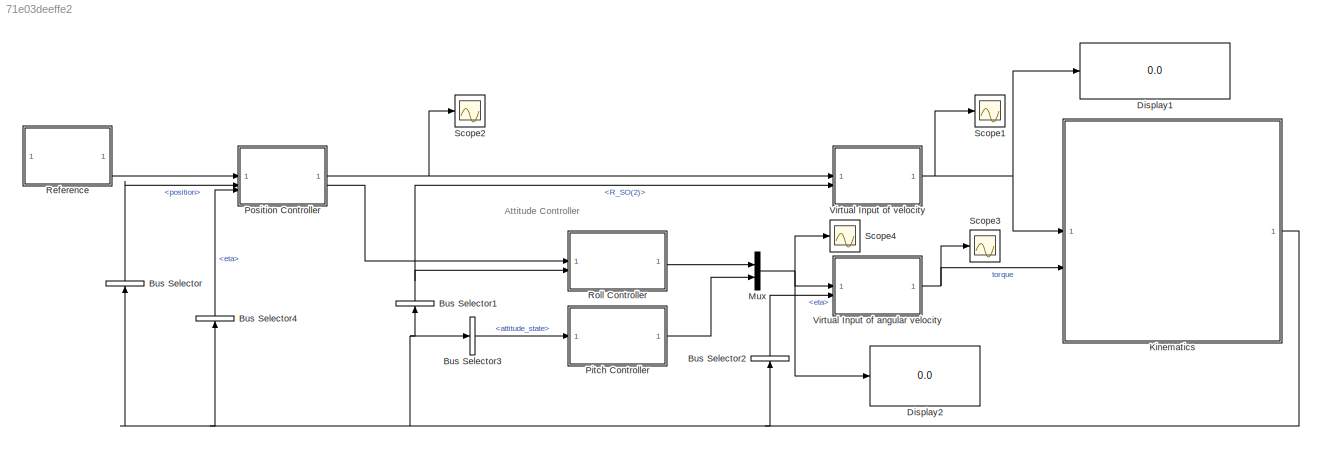
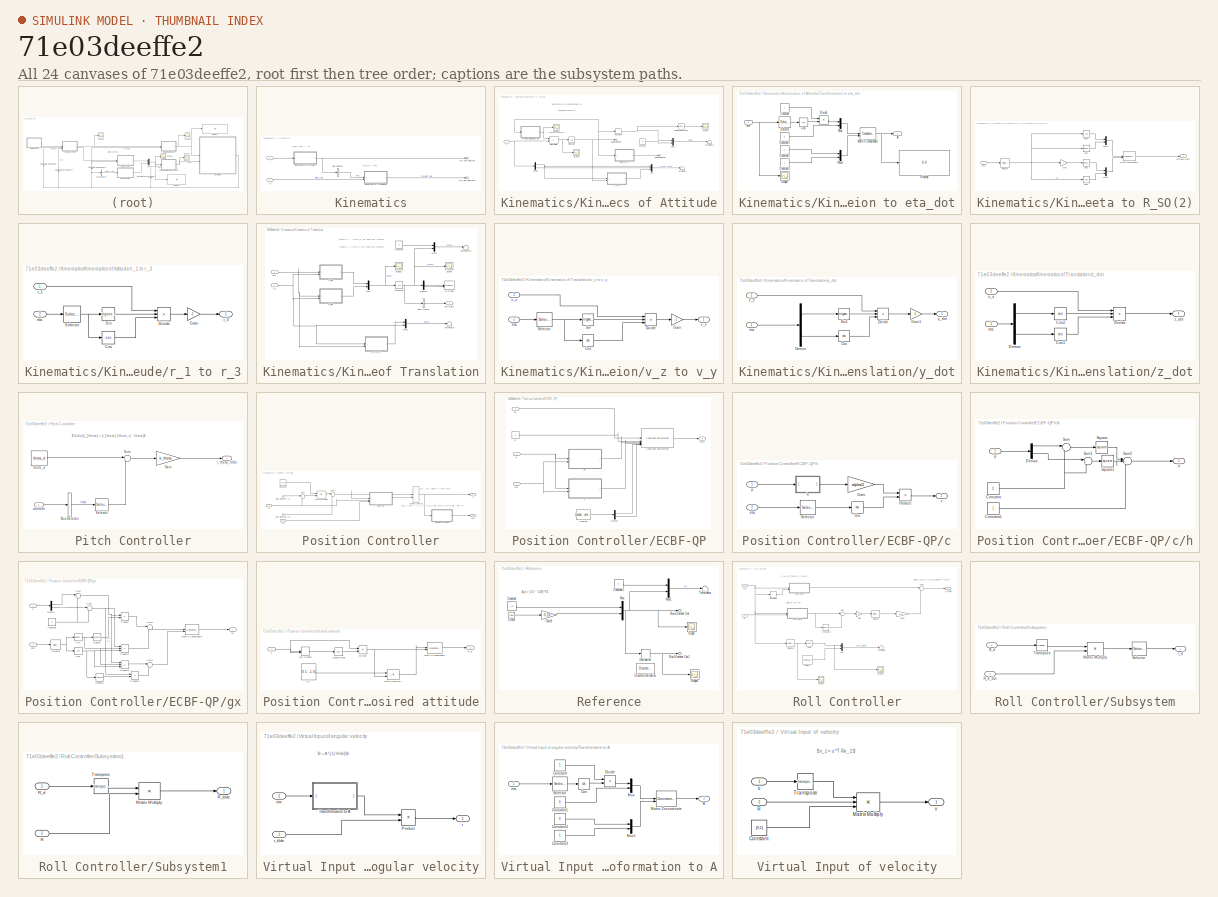
[diagram: thumbnail index - all 24 canvases of the model, root first then tree order]
MODEL slx_71e03deeffe2
KIND model
CONFIG AbsTol = auto
CONFIG EnableMultiTasking = off
CONFIG FixedStep = ts
CONFIG MaxStep = auto
CONFIG MinStep = auto
CONFIG RelTol = 1e-3
CONFIG SampleTimeConstraint = Unconstrained
CONFIG SolverName = FixedStepAuto
CONFIG StartTime = 0.0
CONFIG StopTime = fs
BLOCK [BusSelector] Bus Selector
  NameLocation = right
  OutputSignals = translation_state.position
BLOCK [BusSelector] Bus Selector1
  NameLocation = right
  OutputSignals = attitude_state.R_SO(2)
BLOCK [BusSelector] Bus Selector2
  NameLocation = right
  OutputSignals = attitude_state.eta
BLOCK [BusSelector] Bus Selector3
  OutputSignals = attitude_state
BLOCK [BusSelector] Bus Selector4
  NameLocation = right
  OutputSignals = attitude_state.eta
BLOCK [Display] Display1
  Decimation = 1
BLOCK [Display] Display2
  Decimation = 1
BLOCK [SubSystem] Kinematics
BLOCK [BusSelector] Kinematics/Bus Selector
  OutputSignals = eta
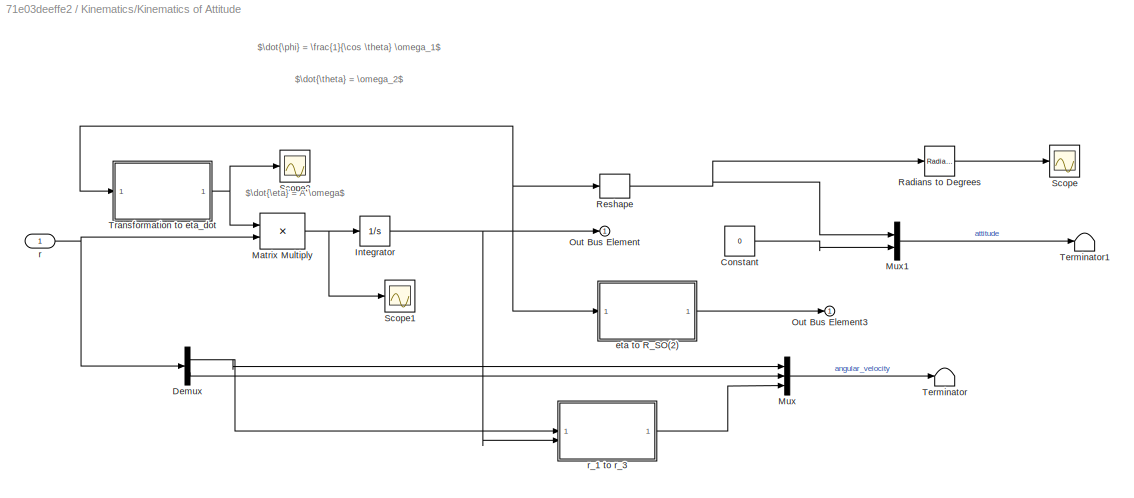
BLOCK [SubSystem] Kinematics/Kinematics of Attitude
BLOCK [Constant] Kinematics/Kinematics of Attitude/Constant
  Value = 0
BLOCK [Demux] Kinematics/Kinematics of Attitude/Demux
  Outputs = 2
BLOCK [Integrator] Kinematics/Kinematics of Attitude/Integrator
  InitialCondition = eta_0
BLOCK [Product] Kinematics/Kinematics of Attitude/Matrix Multiply
  Multiplication = Matrix(*)
BLOCK [Mux] Kinematics/Kinematics of Attitude/Mux
  DisplayOption = bar
  Inputs = 3
BLOCK [Mux] Kinematics/Kinematics of Attitude/Mux1
  DisplayOption = bar
  Inputs = 2
BLOCK [Outport] Kinematics/Kinematics of Attitude/Out Bus Element
BLOCK [Outport] Kinematics/Kinematics of Attitude/Out Bus Element3
BLOCK [Reference] Kinematics/Kinematics of Attitude/Radians to Degrees  REF=simulink_extras/Transformations/Radians
to Degrees
  SourceBlock = simulink_extras/Transformations/Radians\nto Degrees
  SourceType = RadiansToDegrees
BLOCK [Reshape] Kinematics/Kinematics of Attitude/Reshape
BLOCK [Scope] Kinematics/Kinematics of Attitude/Scope
  Floating = off
  NumInputPorts = 1
  ScopeSpecificationString = Simulink.scopes.TimeScopeBlockCfg('CurrentConfiguration', extmgr.ConfigurationSet(extmgr.Configuration('Core','General UI',true),extmgr.Configuration('Core','Source UI',true),extmgr.Configuration('Sources','WiredSimulink',true),extmgr.Configuration('Visuals','Time Domain',true,'SerializedDisplays',{struct('MinYLimReal','-107.94177','MaxYLimReal','53.43878','YLabelReal','','MinYLimMag',' 0.00000','...<+1461ch>
BLOCK [Scope] Kinematics/Kinematics of Attitude/Scope1
  Floating = off
  NumInputPorts = 1
  ScopeSpecificationString = Simulink.scopes.TimeScopeBlockCfg('CurrentConfiguration', extmgr.ConfigurationSet(extmgr.Configuration('Core','General UI',true),extmgr.Configuration('Core','Source UI',true),extmgr.Configuration('Sources','WiredSimulink',true,'DataLoggingVariableName','ScopeData6'),extmgr.Configuration('Visuals','Time Domain',true,'SerializedDisplays',{struct('MinYLimReal','-6.04523','MaxYLimReal','4.90959','YLab...<+1481ch>
BLOCK [Scope] Kinematics/Kinematics of Attitude/Scope2
  Floating = off
  NumInputPorts = 1
  ScopeSpecificationString = Simulink.scopes.TimeScopeBlockCfg('CurrentConfiguration', extmgr.ConfigurationSet(extmgr.Configuration('Core','General UI',true),extmgr.Configuration('Core','Source UI',true),extmgr.Configuration('Sources','WiredSimulink',true,'DataLoggingVariableName','ScopeData2'),extmgr.Configuration('Visuals','Time Domain',true,'SerializedDisplays',{struct('MinYLimReal','-0.12693','MaxYLimReal','1.14235','YLab...<+1539ch>
BLOCK [Terminator] Kinematics/Kinematics of Attitude/Terminator
BLOCK [Terminator] Kinematics/Kinematics of Attitude/Terminator1
BLOCK [SubSystem] Kinematics/Kinematics of Attitude/Transformation to eta_dot
BLOCK [Outport] Kinematics/Kinematics of Attitude/Transformation to eta_dot/A
BLOCK [Constant] Kinematics/Kinematics of Attitude/Transformation to eta_dot/Constant
BLOCK [Constant] Kinematics/Kinematics of Attitude/Transformation to eta_dot/Constant1
  Value = 0
BLOCK [Constant] Kinematics/Kinematics of Attitude/Transformation to eta_dot/Constant2
  Value = 0
BLOCK [Constant] Kinematics/Kinematics of Attitude/Transformation to eta_dot/Constant3
BLOCK [Trigonometry] Kinematics/Kinematics of Attitude/Transformation to eta_dot/Cos
  Operator = cos
BLOCK [Display] Kinematics/Kinematics of Attitude/Transformation to eta_dot/Display
  Decimation = 1
BLOCK [Product] Kinematics/Kinematics of Attitude/Transformation to eta_dot/Divide
  Inputs = */
BLOCK [Concatenate] Kinematics/Kinematics of Attitude/Transformation to eta_dot/Matrix Concatenate
  ConcatenateDimension = 2
  Mode = Multidimensional array
BLOCK [Mux] Kinematics/Kinematics of Attitude/Transformation to eta_dot/Mux
  DisplayOption = bar
  Inputs = 2
BLOCK [Mux] Kinematics/Kinematics of Attitude/Transformation to eta_dot/Mux1
  DisplayOption = bar
  Inputs = 2
BLOCK [Scope] Kinematics/Kinematics of Attitude/Transformation to eta_dot/Scope
  Floating = off
  NumInputPorts = 1
  ScopeSpecificationString = Simulink.scopes.TimeScopeBlockCfg('CurrentConfiguration', extmgr.ConfigurationSet(extmgr.Configuration('Core','General UI',true),extmgr.Configuration('Core','Source UI',true),extmgr.Configuration('Sources','WiredSimulink',true,'DataLoggingVariableName','ScopeData1'),extmgr.Configuration('Visuals','Time Domain',true,'SerializedDisplays',{struct('MinYLimReal','-1.74589','MaxYLimReal','0.38791','YLab...<+1414ch>
BLOCK [Selector] Kinematics/Kinematics of Attitude/Transformation to eta_dot/Selector
  IndexOptions = Index vector (dialog)
  Indices = [2]
  InputPortWidth = 2
  OutputSizes = 1
BLOCK [Inport] Kinematics/Kinematics of Attitude/Transformation to eta_dot/eta
BLOCK [SubSystem] Kinematics/Kinematics of Attitude/eta to R_SO(2)
BLOCK [Trigonometry] Kinematics/Kinematics of Attitude/eta to R_SO(2)/Cos1
  Operator = cos
BLOCK [Trigonometry] Kinematics/Kinematics of Attitude/eta to R_SO(2)/Cos2
  Operator = cos
BLOCK [Gain] Kinematics/Kinematics of Attitude/eta to R_SO(2)/Gain
  Gain = -1
BLOCK [Concatenate] Kinematics/Kinematics of Attitude/eta to R_SO(2)/Matrix Concatenate
  ConcatenateDimension = 2
  Mode = Multidimensional array
BLOCK [Mux] Kinematics/Kinematics of Attitude/eta to R_SO(2)/Mux1
  DisplayOption = bar
  Inputs = 2
BLOCK [Mux] Kinematics/Kinematics of Attitude/eta to R_SO(2)/Mux2
  DisplayOption = bar
  Inputs = 2
BLOCK [Selector] Kinematics/Kinematics of Attitude/eta to R_SO(2)/Selector
  IndexOptions = Index vector (dialog)
  Indices = [1]
  InputPortWidth = 2
  OutputSizes = 1
BLOCK [Trigonometry] Kinematics/Kinematics of Attitude/eta to R_SO(2)/Sin1
BLOCK [Trigonometry] Kinematics/Kinematics of Attitude/eta to R_SO(2)/Sin2
BLOCK [Outport] Kinematics/Kinematics of Attitude/eta to R_SO(2)/attitude_state
BLOCK [Inport] Kinematics/Kinematics of Attitude/eta to R_SO(2)/eta
BLOCK [Inport] Kinematics/Kinematics of Attitude/r
BLOCK [SubSystem] Kinematics/Kinematics of Attitude/r_1 to r_3
BLOCK [Trigonometry] Kinematics/Kinematics of Attitude/r_1 to r_3/Cos
  Operator = cos
BLOCK [Product] Kinematics/Kinematics of Attitude/r_1 to r_3/Divide
  Inputs = **/
BLOCK [Gain] Kinematics/Kinematics of Attitude/r_1 to r_3/Gain
  Gain = -1
BLOCK [Selector] Kinematics/Kinematics of Attitude/r_1 to r_3/Selector
  IndexOptions = Index vector (dialog)
  Indices = [2]
  InputPortWidth = 2
  OutputSizes = 1
BLOCK [Trigonometry] Kinematics/Kinematics of Attitude/r_1 to r_3/Sin
BLOCK [Inport] Kinematics/Kinematics of Attitude/r_1 to r_3/eta
  Port = 2
BLOCK [Inport] Kinematics/Kinematics of Attitude/r_1 to r_3/r_1
BLOCK [Outport] Kinematics/Kinematics of Attitude/r_1 to r_3/r_3
BLOCK [SubSystem] Kinematics/Kinematics of Translation
BLOCK [BusCreator] Kinematics/Kinematics of Translation/Bus Creator
  DisplayOption = bar
  InheritFromInputs = on
  Inputs = 1
BLOCK [Constant] Kinematics/Kinematics of Translation/Constant
  Value = 0
BLOCK [Demux] Kinematics/Kinematics of Translation/Demux
  Outputs = 2
BLOCK [Integrator] Kinematics/Kinematics of Translation/Integrator
  InitialCondition = p_0
BLOCK [Mux] Kinematics/Kinematics of Translation/Mux
  DisplayOption = bar
  Inputs = 2
BLOCK [Mux] Kinematics/Kinematics of Translation/Mux1
  DisplayOption = bar
  Inputs = 2
BLOCK [Mux] Kinematics/Kinematics of Translation/Mux2
  DisplayOption = bar
  Inputs = 2
BLOCK [Scope] Kinematics/Kinematics of Translation/Scope
  Floating = off
  NumInputPorts = 1
  ScopeSpecificationString = Simulink.scopes.TimeScopeBlockCfg('CurrentConfiguration', extmgr.ConfigurationSet(extmgr.Configuration('Core','General UI',true),extmgr.Configuration('Core','Source UI',true),extmgr.Configuration('Sources','WiredSimulink',true),extmgr.Configuration('Visuals','Time Domain',true,'SerializedDisplays',{struct('MinYLimReal','-0.75019','MaxYLimReal','6.75171','YLabelReal','','MinYLimMag','0.00000','MaxY...<+1395ch>
BLOCK [Scope] Kinematics/Kinematics of Translation/Scope1
  Floating = off
  NumInputPorts = 1
  ScopeSpecificationString = Simulink.scopes.TimeScopeBlockCfg('CurrentConfiguration', extmgr.ConfigurationSet(extmgr.Configuration('Core','General UI',true),extmgr.Configuration('Core','Source UI',true),extmgr.Configuration('Sources','WiredSimulink',true,'DataLoggingVariableName','ScopeData4'),extmgr.Configuration('Visuals','Time Domain',true,'SerializedDisplays',{struct('MinYLimReal','-0.17023','MaxYLimReal','1.53203','YLab...<+1434ch>
BLOCK [Terminator] Kinematics/Kinematics of Translation/Terminator
BLOCK [Terminator] Kinematics/Kinematics of Translation/Terminator1
BLOCK [Record] Kinematics/Kinematics of Translation/XY Graph
  CompatibilityTag = XY
  FileSettingsInternal = {"entries":[{"content":{"excelSettings":{"content":{},"type":"Streamout.ExcelSettings"}},"type":"Streamout.FileSettingStorage","uuid":""}],"packageUris":["http:\/\/schema.mathworks.com\/mf0\/streamout_blocks\/R2020a"],"version":"1.0"}
  Layout = [1 1]
  SignalsInternal = {"entries":[{"content":{"signals":[{"content":{"blockPath":[],"dimensions":[1],"domain":"","lineColor":"#a2142f","plots":[1],"port":1,"sid":[""],"signalID":39,"signalName":"Demux:1"},"type":"RecordBlkView.Signal","uuid":""},{"content":{"blockPath":[],"dimensions":[1],"domain":"","lineColor":"#139fff","plots":[1],"port":2,"sid":[""],"signalID":43,"signalName":"Demux:2"},"type":"RecordBlkView.Signal...<+158ch>
  VisualizationBindings = {"xyplotplugin":{"info":[{"series":[{"bindingParametersList":[{"parameter":"X-Axis","signalID":39,"signalName":"Demux:1"},{"parameter":"Y-Axis","signalID":43,"signalName":"Demux:2"}],"seriesID":24023}],"subplotID":1}]}}
BLOCK [Inport] Kinematics/Kinematics of Translation/eta
BLOCK [Outport] Kinematics/Kinematics of Translation/uav state
BLOCK [Inport] Kinematics/Kinematics of Translation/v_z
  Port = 2
BLOCK [SubSystem] Kinematics/Kinematics of Translation/v_z to v_y
BLOCK [Trigonometry] Kinematics/Kinematics of Translation/v_z to v_y/Cos
  Operator = cos
BLOCK [Product] Kinematics/Kinematics of Translation/v_z to v_y/Divide
  Inputs = **/
BLOCK [Gain] Kinematics/Kinematics of Translation/v_z to v_y/Gain
  Gain = -1
BLOCK [Selector] Kinematics/Kinematics of Translation/v_z to v_y/Selector
  IndexOptions = Index vector (dialog)
  Indices = [2]
  InputPortWidth = 2
  OutputSizes = 1
BLOCK [Trigonometry] Kinematics/Kinematics of Translation/v_z to v_y/Sin
BLOCK [Inport] Kinematics/Kinematics of Translation/v_z to v_y/eta
  Port = 2
BLOCK [Outport] Kinematics/Kinematics of Translation/v_z to v_y/v_x
BLOCK [Inport] Kinematics/Kinematics of Translation/v_z to v_y/v_z
BLOCK [SubSystem] Kinematics/Kinematics of Translation/y_dot
BLOCK [Trigonometry] Kinematics/Kinematics of Translation/y_dot/Cos
  Operator = cos
BLOCK [Demux] Kinematics/Kinematics of Translation/y_dot/Demux
  Outputs = 2
BLOCK [Product] Kinematics/Kinematics of Translation/y_dot/Divide
  Inputs = **/
BLOCK [Gain] Kinematics/Kinematics of Translation/y_dot/Gain1
  Gain = -1
BLOCK [Trigonometry] Kinematics/Kinematics of Translation/y_dot/Sin1
BLOCK [Inport] Kinematics/Kinematics of Translation/y_dot/eta
BLOCK [Inport] Kinematics/Kinematics of Translation/y_dot/v_z
  Port = 2
BLOCK [Outport] Kinematics/Kinematics of Translation/y_dot/y_dot
BLOCK [SubSystem] Kinematics/Kinematics of Translation/z_dot
BLOCK [Trigonometry] Kinematics/Kinematics of Translation/z_dot/Cos1
  Operator = cos
BLOCK [Trigonometry] Kinematics/Kinematics of Translation/z_dot/Cos2
  Operator = cos
BLOCK [Demux] Kinematics/Kinematics of Translation/z_dot/Demux
  Outputs = 2
BLOCK [Product] Kinematics/Kinematics of Translation/z_dot/Divide
  Inputs = **/
BLOCK [Inport] Kinematics/Kinematics of Translation/z_dot/eta
BLOCK [Inport] Kinematics/Kinematics of Translation/z_dot/v_z
  Port = 2
BLOCK [Outport] Kinematics/Kinematics of Translation/z_dot/z_dot
BLOCK [Outport] Kinematics/Out Bus Element
BLOCK [Outport] Kinematics/Out Bus Element1
BLOCK [Inport] Kinematics/r
  Port = 2
BLOCK [Inport] Kinematics/v_z
BLOCK [Mux] Mux
  DisplayOption = bar
  Inputs = 2
BLOCK [SubSystem] Pitch Controller
BLOCK [BusSelector] Pitch Controller/Bus Selector
  OutputSignals = eta
BLOCK [Gain] Pitch Controller/Gain
  Gain = k_theta
BLOCK [Selector] Pitch Controller/Selector
  IndexOptions = Index vector (dialog)
  Indices = [2]
  InputPortWidth = 2
  OutputSizes = 1
BLOCK [Sum] Pitch Controller/Sum
  Inputs = |+-
BLOCK [Inport] Pitch Controller/attitude
BLOCK [Outport] Pitch Controller/r_theta_tilde
BLOCK [Constant] Pitch Controller/theta_d
  Value = theta_d
BLOCK [SubSystem] Position Controller
BLOCK [Inport] Position Controller/Bus Element In
BLOCK [Inport] Position Controller/Bus Element In1
BLOCK [Constant] Position Controller/Constant
  Value = K_p
BLOCK [SubSystem] Position Controller/ECBF-QP
BLOCK [Constant] Position Controller/ECBF-QP/Constant
  Value = [umax ; umin]
  VectorParams1D = off
BLOCK [Reference] Position Controller/ECBF-QP/Constraint Enforcement  REF=slctrlblks/Constraint Enforcement
  SourceBlock = slctrlblks/Constraint Enforcement
  SourceType = Constraint Enforcement
BLOCK [Demux] Position Controller/ECBF-QP/Demux
  Outputs = 2
BLOCK [Outport] Position Controller/ECBF-QP/Out1
BLOCK [SubSystem] Position Controller/ECBF-QP/c
BLOCK [Trigonometry] Position Controller/ECBF-QP/c/Cos
  Operator = cos
BLOCK [Gain] Position Controller/ECBF-QP/c/Gain
  Gain = alpha/2
BLOCK [Product] Position Controller/ECBF-QP/c/Product
BLOCK [Selector] Position Controller/ECBF-QP/c/Selector
  IndexOptions = Index vector (dialog)
  Indices = [2]
  InputPortWidth = 2
  OutputSizes = 1
BLOCK [Outport] Position Controller/ECBF-QP/c/c
BLOCK [Inport] Position Controller/ECBF-QP/c/eta
  Port = 2
BLOCK [SubSystem] Position Controller/ECBF-QP/c/h
BLOCK [Constant] Position Controller/ECBF-QP/c/h/Constant
  Value = 2
BLOCK [Constant] Position Controller/ECBF-QP/c/h/Constant1
BLOCK [Demux] Position Controller/ECBF-QP/c/h/Demux
  Outputs = 2
BLOCK [Math] Position Controller/ECBF-QP/c/h/Square
  Operator = square
BLOCK [Math] Position Controller/ECBF-QP/c/h/Square1
  Operator = square
BLOCK [Sum] Position Controller/ECBF-QP/c/h/Sum
  Inputs = |+-
BLOCK [Sum] Position Controller/ECBF-QP/c/h/Sum1
  Inputs = |+-
BLOCK [Sum] Position Controller/ECBF-QP/c/h/Sum2
  Inputs = |++-
BLOCK [Outport] Position Controller/ECBF-QP/c/h/h
BLOCK [Inport] Position Controller/ECBF-QP/c/h/p
BLOCK [Inport] Position Controller/ECBF-QP/c/p
BLOCK [Inport] Position Controller/ECBF-QP/eta
  Port = 3
BLOCK [Constant] Position Controller/ECBF-QP/fx
  Value = 0
  VectorParams1D = off
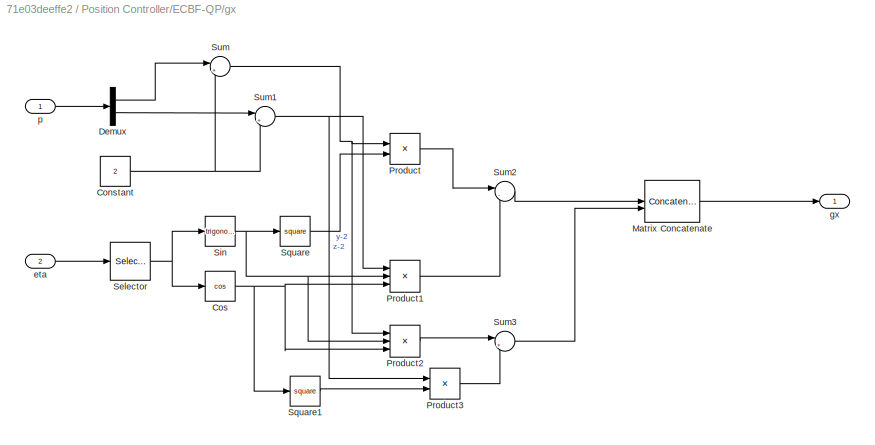
BLOCK [SubSystem] Position Controller/ECBF-QP/gx
BLOCK [Constant] Position Controller/ECBF-QP/gx/Constant
  Value = 2
BLOCK [Trigonometry] Position Controller/ECBF-QP/gx/Cos
  Operator = cos
BLOCK [Demux] Position Controller/ECBF-QP/gx/Demux
  Outputs = 2
BLOCK [Concatenate] Position Controller/ECBF-QP/gx/Matrix Concatenate
  ConcatenateDimension = 2
  Mode = Multidimensional array
BLOCK [Product] Position Controller/ECBF-QP/gx/Product
BLOCK [Product] Position Controller/ECBF-QP/gx/Product1
  Inputs = 3
BLOCK [Product] Position Controller/ECBF-QP/gx/Product2
  Inputs = 3
BLOCK [Product] Position Controller/ECBF-QP/gx/Product3
BLOCK [Selector] Position Controller/ECBF-QP/gx/Selector
  IndexOptions = Index vector (dialog)
  Indices = [1]
  InputPortWidth = 2
  OutputSizes = 1
BLOCK [Trigonometry] Position Controller/ECBF-QP/gx/Sin
BLOCK [Math] Position Controller/ECBF-QP/gx/Square
  Operator = square
BLOCK [Math] Position Controller/ECBF-QP/gx/Square1
  Operator = square
BLOCK [Sum] Position Controller/ECBF-QP/gx/Sum
  Inputs = |+-
BLOCK [Sum] Position Controller/ECBF-QP/gx/Sum1
  Inputs = |+-
BLOCK [Sum] Position Controller/ECBF-QP/gx/Sum2
  Inputs = |--
BLOCK [Sum] Position Controller/ECBF-QP/gx/Sum3
  Inputs = |+-
BLOCK [Inport] Position Controller/ECBF-QP/gx/eta
  Port = 2
BLOCK [Outport] Position Controller/ECBF-QP/gx/gx
BLOCK [Inport] Position Controller/ECBF-QP/gx/p
BLOCK [Inport] Position Controller/ECBF-QP/p
  Port = 2
BLOCK [Inport] Position Controller/ECBF-QP/u0
BLOCK [Product] Position Controller/Matrix Multiply
  Multiplication = Matrix(*)
BLOCK [Outport] Position Controller/R_d
  Port = 2
BLOCK [Sum] Position Controller/Sum
  Inputs = |+-
BLOCK [Sum] Position Controller/Sum1
  Inputs = |++
BLOCK [VariantSource] Position Controller/Variant Source
BLOCK [SubSystem] Position Controller/desired attitude
BLOCK [Constant] Position Controller/desired attitude/(-1)^
  Value = [0 1; -1 0]
  VectorParams1D = off
BLOCK [Product] Position Controller/desired attitude/Divide
  Inputs = */
BLOCK [DotProduct] Position Controller/desired attitude/Dot Product
  OutDataTypeStr = Inherit: Inherit via internal rule
BLOCK [Concatenate] Position Controller/desired attitude/Matrix Concatenate
  ConcatenateDimension = 2
  Mode = Multidimensional array
BLOCK [Product] Position Controller/desired attitude/Matrix Multiply
  Multiplication = Matrix(*)
BLOCK [Outport] Position Controller/desired attitude/R_d
BLOCK [Sqrt] Position Controller/desired attitude/Square Root
BLOCK [Inport] Position Controller/desired attitude/u
BLOCK [Inport] Position Controller/eta
  Port = 3
BLOCK [Inport] Position Controller/p
  Port = 2
BLOCK [Outport] Position Controller/u
BLOCK [SubSystem] Reference
BLOCK [Outport] Reference/Bus Element Out
BLOCK [Outport] Reference/Bus Element Out1
BLOCK [Clock] Reference/Clock1
BLOCK [Constant] Reference/Constant
  Value = y_d
BLOCK [Constant] Reference/Constant1
  Value = 0
BLOCK [Derivative] Reference/Derivative
BLOCK [Reference] Reference/Discrete Derivative  REF=simulink/Discrete/Discrete Derivative
  Commented = on
  SourceBlock = simulink/Discrete/Discrete Derivative
  SourceType = Discrete Derivative
BLOCK [Gain] Reference/Gain3
  Gain = 0.20
BLOCK [Mux] Reference/Mux
  DisplayOption = bar
  Inputs = 2
BLOCK [Mux] Reference/Mux1
  DisplayOption = bar
  Inputs = 2
BLOCK [Scope] Reference/Scope
  Floating = off
  NumInputPorts = 1
  ScopeSpecificationString = Simulink.scopes.TimeScopeBlockCfg('CurrentConfiguration', extmgr.ConfigurationSet(extmgr.Configuration('Core','General UI',true),extmgr.Configuration('Core','Source UI',true),extmgr.Configuration('Sources','WiredSimulink',true,'DataLoggingVariableName','ScopeData3'),extmgr.Configuration('Visuals','Time Domain',true,'SerializedDisplays',{struct('MinYLimReal','-0.75','MaxYLimReal','6.75','YLabelReal...<+1397ch>
BLOCK [Scope] Reference/Scope1
  Floating = off
  NumInputPorts = 1
  ScopeSpecificationString = Simulink.scopes.TimeScopeBlockCfg('CurrentConfiguration', extmgr.ConfigurationSet(extmgr.Configuration('Core','General UI',true),extmgr.Configuration('Core','Source UI',true),extmgr.Configuration('Sources','WiredSimulink',true,'DataLoggingVariableName','ScopeData4'),extmgr.Configuration('Visuals','Time Domain',true,'SerializedDisplays',{struct('MinYLimReal','-0.1885','MaxYLimReal','0.1885','YLabel...<+1464ch>
BLOCK [Terminator] Reference/Terminator
BLOCK [SubSystem] Roll Controller
BLOCK [Trigonometry] Roll Controller/Acos
  Operator = asin
BLOCK [Derivative] Roll Controller/Derivative
BLOCK [Gain] Roll Controller/Gain
  Gain = 1/2
BLOCK [Gain] Roll Controller/Gain1
  Gain = k_R
BLOCK [Mux] Roll Controller/Mux
  DisplayOption = bar
  Inputs = 2
BLOCK [Inport] Roll Controller/R
  Port = 2
BLOCK [Inport] Roll Controller/R_d
BLOCK [Scope] Roll Controller/Scope
  Floating = off
  NumInputPorts = 1
  ScopeSpecificationString = Simulink.scopes.TimeScopeBlockCfg('CurrentConfiguration', extmgr.ConfigurationSet(extmgr.Configuration('Core','General UI',true),extmgr.Configuration('Core','Source UI',true),extmgr.Configuration('Sources','WiredSimulink',true,'DataLoggingVariableName','ScopeData2'),extmgr.Configuration('Visuals','Time Domain',true,'SerializedDisplays',{struct('MinYLimReal','-1.12498','MaxYLimReal','0.1248','YLabe...<+1409ch>
BLOCK [Scope] Roll Controller/Scope1
  Floating = off
  NumInputPorts = 1
  ScopeSpecificationString = Simulink.scopes.TimeScopeBlockCfg('CurrentConfiguration', extmgr.ConfigurationSet(extmgr.Configuration('Core','General UI',true),extmgr.Configuration('Core','Source UI',true),extmgr.Configuration('Sources','WiredSimulink',true,'DataLoggingVariableName','ScopeData3'),extmgr.Configuration('Visuals','Time Domain',true,'SerializedDisplays',{struct('MinYLimReal','-1.76712','MaxYLimReal','0.19615','YLab...<+1392ch>
BLOCK [Selector] Roll Controller/Selector
  IndexOptions = Index vector (dialog),Index vector (dialog)
  Indices = [2],1
  InputPortWidth = 3
  NumberOfDimensions = 2
  OutputSizes = 1,1
BLOCK [Selector] Roll Controller/Selector1
  IndexOptions = Index vector (dialog),Index vector (dialog)
  Indices = [2],[1]
  InputPortWidth = 3
  NumberOfDimensions = 2
  OutputSizes = 1,1
BLOCK [SubSystem] Roll Controller/Subsystem
BLOCK [Product] Roll Controller/Subsystem/Matrix Multiply
  Multiplication = Matrix(*)
BLOCK [Inport] Roll Controller/Subsystem/R_d
BLOCK [Inport] Roll Controller/Subsystem/R_d_dot
  Port = 2
BLOCK [Selector] Roll Controller/Subsystem/Selector
  IndexOptions = Index vector (dialog),Index vector (dialog)
  Indices = [2],1
  InputPortWidth = 3
  NumberOfDimensions = 2
  OutputSizes = 1,1
BLOCK [Math] Roll Controller/Subsystem/Transpose
  Operator = transpose
BLOCK [Outport] Roll Controller/Subsystem/r_d
BLOCK [SubSystem] Roll Controller/Subsystem1
BLOCK [Product] Roll Controller/Subsystem1/Matrix Multiply
  Multiplication = Matrix(*)
BLOCK [Inport] Roll Controller/Subsystem1/R
  Port = 2
BLOCK [Inport] Roll Controller/Subsystem1/R_d
BLOCK [Outport] Roll Controller/Subsystem1/R_tilde
BLOCK [Math] Roll Controller/Subsystem1/Transpose
  Operator = transpose
BLOCK [Sum] Roll Controller/Sum
  Inputs = |+-
BLOCK [Sum] Roll Controller/Sum1
  Inputs = |+-
BLOCK [Terminator] Roll Controller/Terminator
BLOCK [Math] Roll Controller/Transpose
  Operator = transpose
BLOCK [Outport] Roll Controller/r_phi_tilde
BLOCK [Constant] Roll Controller/theta_d
  Value = theta_d
BLOCK [Scope] Scope1
  Floating = off
  NumInputPorts = 1
  ScopeSpecificationString = Simulink.scopes.TimeScopeBlockCfg('CurrentConfiguration', extmgr.ConfigurationSet(extmgr.Configuration('Core','General UI',true),extmgr.Configuration('Core','Source UI',true),extmgr.Configuration('Sources','WiredSimulink',true,'DataLoggingVariableName','ScopeData2'),extmgr.Configuration('Visuals','Time Domain',true,'SerializedDisplays',{struct('MinYLimReal','-0.99898','MaxYLimReal','1.97774','YLab...<+1467ch>
BLOCK [Scope] Scope2
  Floating = off
  NumInputPorts = 1
  ScopeSpecificationString = Simulink.scopes.TimeScopeBlockCfg('CurrentConfiguration', extmgr.ConfigurationSet(extmgr.Configuration('Core','General UI',true),extmgr.Configuration('Core','Source UI',true),extmgr.Configuration('Sources','WiredSimulink',true,'DataLoggingVariableName','ScopeData1'),extmgr.Configuration('Visuals','Time Domain',true,'SerializedDisplays',{struct('MinYLimReal','-1.05992','MaxYLimReal','2.89555','YLab...<+1491ch>
BLOCK [Scope] Scope3
  Floating = off
  NumInputPorts = 1
  ScopeSpecificationString = Simulink.scopes.TimeScopeBlockCfg('CurrentConfiguration', extmgr.ConfigurationSet(extmgr.Configuration('Core','General UI',true),extmgr.Configuration('Core','Source UI',true),extmgr.Configuration('Sources','WiredSimulink',true,'DataLoggingVariableName','ScopeData5'),extmgr.Configuration('Visuals','Time Domain',true,'SerializedDisplays',{struct('MinYLimReal','-10.87892','MaxYLimReal','77.91026','YL...<+1506ch>
BLOCK [Scope] Scope4
  Floating = off
  NumInputPorts = 1
  ScopeSpecificationString = Simulink.scopes.TimeScopeBlockCfg('CurrentConfiguration', extmgr.ConfigurationSet(extmgr.Configuration('Core','General UI',true),extmgr.Configuration('Core','Source UI',true),extmgr.Configuration('Sources','WiredSimulink',true,'DataLoggingVariableName','ScopeData2'),extmgr.Configuration('Visuals','Time Domain',true,'SerializedDisplays',{struct('MinYLimReal','-126.70972','MaxYLimReal','127.14389','...<+1475ch>
BLOCK [SubSystem] Virtual Input of angular velocity
BLOCK [Product] Virtual Input of angular velocity/Product
  Inputs = /*
  Multiplication = Matrix(*)
BLOCK [SubSystem] Virtual Input of angular velocity/Transformation to A
BLOCK [Outport] Virtual Input of angular velocity/Transformation to A/A
BLOCK [Constant] Virtual Input of angular velocity/Transformation to A/Constant
BLOCK [Constant] Virtual Input of angular velocity/Transformation to A/Constant1
  Value = 0
BLOCK [Constant] Virtual Input of angular velocity/Transformation to A/Constant2
  Value = 0
BLOCK [Constant] Virtual Input of angular velocity/Transformation to A/Constant3
BLOCK [Trigonometry] Virtual Input of angular velocity/Transformation to A/Cos
  Operator = cos
BLOCK [Product] Virtual Input of angular velocity/Transformation to A/Divide
  Inputs = */
BLOCK [Concatenate] Virtual Input of angular velocity/Transformation to A/Matrix Concatenate
  ConcatenateDimension = 2
  Mode = Multidimensional array
BLOCK [Mux] Virtual Input of angular velocity/Transformation to A/Mux
  DisplayOption = bar
  Inputs = 2
BLOCK [Mux] Virtual Input of angular velocity/Transformation to A/Mux1
  DisplayOption = bar
  Inputs = 2
BLOCK [Selector] Virtual Input of angular velocity/Transformation to A/Selector
  IndexOptions = Index vector (dialog)
  Indices = [2]
  InputPortWidth = 2
  OutputSizes = 1
BLOCK [Inport] Virtual Input of angular velocity/Transformation to A/eta
BLOCK [Inport] Virtual Input of angular velocity/eta
  Port = 2
BLOCK [Outport] Virtual Input of angular velocity/r
BLOCK [Inport] Virtual Input of angular velocity/r_tilde
BLOCK [SubSystem] Virtual Input of velocity
BLOCK [Constant] Virtual Input of velocity/Constant
  Value = [0;1]
  VectorParams1D = off
BLOCK [Product] Virtual Input of velocity/Matrix Multiply
  Inputs = 3
  Multiplication = Matrix(*)
BLOCK [Inport] Virtual Input of velocity/R
  Port = 2
BLOCK [Math] Virtual Input of velocity/Transpose
  Operator = transpose
BLOCK [Inport] Virtual Input of velocity/u
BLOCK [Outport] Virtual Input of velocity/v
ANNOTATION (root): Attitude Controller
ANNOTATION Kinematics: $\dot{\eta} = A r$
ANNOTATION Kinematics: $\dot{p} = Rv$
ANNOTATION Kinematics/Kinematics of Attitude: $\dot{\eta} = A \omega$
ANNOTATION Kinematics/Kinematics of Attitude: $\dot{\phi} = \frac{1}{\cos \theta} \omega_1$
ANNOTATION Kinematics/Kinematics of Attitude: $\dot{\theta} = \omega_2$
ANNOTATION Kinematics/Kinematics of Translation: $\dot{y} = - \frac{v_z \sin \phi}{\cos \theta}$
ANNOTATION Kinematics/Kinematics of Translation: $\dot{z} = \frac{v_z \cos \phi}{\cos \theta}$
ANNOTATION Pitch Controller: $\tilde{r}_{\theta} = k_{\theta} (\theta_d - \theta)$
ANNOTATION Position Controller: $R_d = \left [ (-1)^{\^} \frac{u}{||u||} \quad \frac{u}{||u||} \right ]$
ANNOTATION Position Controller: $u = -K_p \tilde{X} + \dot{X_d}$
ANNOTATION Reference: $p_d = [2.5 ~ 0.20t]^T$
ANNOTATION Roll Controller: $r_d = (R_d^T \dot{R}_d ) ^{\vee}$
ANNOTATION Roll Controller: $\tilde{r_{\phi}} = r_d - k_R P_a (\tilde{R} ) ^{\vee}$
ANNOTATION Roll Controller: $\tilde{R} = R_d^T R$
ANNOTATION Virtual Input of angular velocity: $r = A^{-1} \tilde{r}$
ANNOTATION Virtual Input of velocity: $v_z = u^T Re_2$
NET Bus Selector1:1 -> Roll Controller:2, Virtual Input of velocity:2
LINE Bus Selector2:1 -> Virtual Input of angular velocity:2
LINE Bus Selector3:1 -> Pitch Controller:1
LINE Bus Selector4:1 -> Position Controller:3
LINE Bus Selector:1 -> Position Controller:2
LINE Kinematics/Bus Selector:1 -> Kinematics/Kinematics of Translation:1
LINE Kinematics/Kinematics of Attitude/Constant:1 -> Kinematics/Kinematics of Attitude/Mux1:2
NET Kinematics/Kinematics of Attitude/Demux:1 -> Kinematics/Kinematics of Attitude/Mux:1, Kinematics/Kinematics of Attitude/r_1 to r_3:1
LINE Kinematics/Kinematics of Attitude/Demux:2 -> Kinematics/Kinematics of Attitude/Mux:2
NET Kinematics/Kinematics of Attitude/Integrator:1 -> Kinematics/Kinematics of Attitude/Out Bus Element:1, Kinematics/Kinematics of Attitude/Reshape:1, Kinematics/Kinematics of Attitude/Transformation to eta_dot:1, Kinematics/Kinematics of Attitude/eta to R_SO(2):1, Kinematics/Kinematics of Attitude/r_1 to r_3:2
NET Kinematics/Kinematics of Attitude/Matrix Multiply:1 -> Kinematics/Kinematics of Attitude/Integrator:1, Kinematics/Kinematics of Attitude/Scope1:1
LINE Kinematics/Kinematics of Attitude/Mux1:1 -> Kinematics/Kinematics of Attitude/Terminator1:1
LINE Kinematics/Kinematics of Attitude/Mux:1 -> Kinematics/Kinematics of Attitude/Terminator:1
LINE Kinematics/Kinematics of Attitude/Radians to Degrees:1 -> Kinematics/Kinematics of Attitude/Scope:1
NET Kinematics/Kinematics of Attitude/Reshape:1 -> Kinematics/Kinematics of Attitude/Mux1:1, Kinematics/Kinematics of Attitude/Radians to Degrees:1
LINE Kinematics/Kinematics of Attitude/Transformation to eta_dot/Constant1:1 -> Kinematics/Kinematics of Attitude/Transformation to eta_dot/Mux:2
LINE Kinematics/Kinematics of Attitude/Transformation to eta_dot/Constant2:1 -> Kinematics/Kinematics of Attitude/Transformation to eta_dot/Mux1:1
LINE Kinematics/Kinematics of Attitude/Transformation to eta_dot/Constant3:1 -> Kinematics/Kinematics of Attitude/Transformation to eta_dot/Mux1:2
LINE Kinematics/Kinematics of Attitude/Transformation to eta_dot/Constant:1 -> Kinematics/Kinematics of Attitude/Transformation to eta_dot/Divide:1
LINE Kinematics/Kinematics of Attitude/Transformation to eta_dot/Cos:1 -> Kinematics/Kinematics of Attitude/Transformation to eta_dot/Divide:2
LINE Kinematics/Kinematics of Attitude/Transformation to eta_dot/Divide:1 -> Kinematics/Kinematics of Attitude/Transformation to eta_dot/Mux:1
NET Kinematics/Kinematics of Attitude/Transformation to eta_dot/Matrix Concatenate:1 -> Kinematics/Kinematics of Attitude/Transformation to eta_dot/A:1, Kinematics/Kinematics of Attitude/Transformation to eta_dot/Display:1
LINE Kinematics/Kinematics of Attitude/Transformation to eta_dot/Mux1:1 -> Kinematics/Kinematics of Attitude/Transformation to eta_dot/Matrix Concatenate:2
LINE Kinematics/Kinematics of Attitude/Transformation to eta_dot/Mux:1 -> Kinematics/Kinematics of Attitude/Transformation to eta_dot/Matrix Concatenate:1
LINE Kinematics/Kinematics of Attitude/Transformation to eta_dot/Selector:1 -> Kinematics/Kinematics of Attitude/Transformation to eta_dot/Cos:1
NET Kinematics/Kinematics of Attitude/Transformation to eta_dot/eta:1 -> Kinematics/Kinematics of Attitude/Transformation to eta_dot/Scope:1, Kinematics/Kinematics of Attitude/Transformation to eta_dot/Selector:1
NET Kinematics/Kinematics of Attitude/Transformation to eta_dot:1 -> Kinematics/Kinematics of Attitude/Matrix Multiply:1, Kinematics/Kinematics of Attitude/Scope2:1
LINE Kinematics/Kinematics of Attitude/eta to R_SO(2)/Cos1:1 -> Kinematics/Kinematics of Attitude/eta to R_SO(2)/Mux1:1
LINE Kinematics/Kinematics of Attitude/eta to R_SO(2)/Cos2:1 -> Kinematics/Kinematics of Attitude/eta to R_SO(2)/Mux2:2
LINE Kinematics/Kinematics of Attitude/eta to R_SO(2)/Gain:1 -> Kinematics/Kinematics of Attitude/eta to R_SO(2)/Sin2:1
LINE Kinematics/Kinematics of Attitude/eta to R_SO(2)/Matrix Concatenate:1 -> Kinematics/Kinematics of Attitude/eta to R_SO(2)/attitude_state:1
LINE Kinematics/Kinematics of Attitude/eta to R_SO(2)/Mux1:1 -> Kinematics/Kinematics of Attitude/eta to R_SO(2)/Matrix Concatenate:1
LINE Kinematics/Kinematics of Attitude/eta to R_SO(2)/Mux2:1 -> Kinematics/Kinematics of Attitude/eta to R_SO(2)/Matrix Concatenate:2
NET Kinematics/Kinematics of Attitude/eta to R_SO(2)/Selector:1 -> Kinematics/Kinematics of Attitude/eta to R_SO(2)/Cos1:1, Kinematics/Kinematics of Attitude/eta to R_SO(2)/Cos2:1, Kinematics/Kinematics of Attitude/eta to R_SO(2)/Gain:1, Kinematics/Kinematics of Attitude/eta to R_SO(2)/Sin1:1
LINE Kinematics/Kinematics of Attitude/eta to R_SO(2)/Sin1:1 -> Kinematics/Kinematics of Attitude/eta to R_SO(2)/Mux1:2
LINE Kinematics/Kinematics of Attitude/eta to R_SO(2)/Sin2:1 -> Kinematics/Kinematics of Attitude/eta to R_SO(2)/Mux2:1
LINE Kinematics/Kinematics of Attitude/eta to R_SO(2)/eta:1 -> Kinematics/Kinematics of Attitude/eta to R_SO(2)/Selector:1
LINE Kinematics/Kinematics of Attitude/eta to R_SO(2):1 -> Kinematics/Kinematics of Attitude/Out Bus Element3:1
NET Kinematics/Kinematics of Attitude/r:1 -> Kinematics/Kinematics of Attitude/Demux:1, Kinematics/Kinematics of Attitude/Matrix Multiply:2
LINE Kinematics/Kinematics of Attitude/r_1 to r_3/Cos:1 -> Kinematics/Kinematics of Attitude/r_1 to r_3/Divide:3
LINE Kinematics/Kinematics of Attitude/r_1 to r_3/Divide:1 -> Kinematics/Kinematics of Attitude/r_1 to r_3/Gain:1
LINE Kinematics/Kinematics of Attitude/r_1 to r_3/Gain:1 -> Kinematics/Kinematics of Attitude/r_1 to r_3/r_3:1
NET Kinematics/Kinematics of Attitude/r_1 to r_3/Selector:1 -> Kinematics/Kinematics of Attitude/r_1 to r_3/Cos:1, Kinematics/Kinematics of Attitude/r_1 to r_3/Sin:1
LINE Kinematics/Kinematics of Attitude/r_1 to r_3/Sin:1 -> Kinematics/Kinematics of Attitude/r_1 to r_3/Divide:2
LINE Kinematics/Kinematics of Attitude/r_1 to r_3/eta:1 -> Kinematics/Kinematics of Attitude/r_1 to r_3/Selector:1
LINE Kinematics/Kinematics of Attitude/r_1 to r_3/r_1:1 -> Kinematics/Kinematics of Attitude/r_1 to r_3/Divide:1
LINE Kinematics/Kinematics of Attitude/r_1 to r_3:1 -> Kinematics/Kinematics of Attitude/Mux:3
NET Kinematics/Kinematics of Attitude:1 -> Kinematics/Bus Selector:1, Kinematics/Out Bus Element:1
LINE Kinematics/Kinematics of Translation/Bus Creator:1 -> Kinematics/Kinematics of Translation/uav state:1
LINE Kinematics/Kinematics of Translation/Constant:1 -> Kinematics/Kinematics of Translation/Mux1:1
LINE Kinematics/Kinematics of Translation/Demux:1 -> Kinematics/Kinematics of Translation/XY Graph:1
LINE Kinematics/Kinematics of Translation/Demux:2 -> Kinematics/Kinematics of Translation/XY Graph:2
NET Kinematics/Kinematics of Translation/Integrator:1 -> Kinematics/Kinematics of Translation/Bus Creator:1, Kinematics/Kinematics of Translation/Demux:1, Kinematics/Kinematics of Translation/Mux1:2, Kinematics/Kinematics of Translation/Scope:1
LINE Kinematics/Kinematics of Translation/Mux1:1 -> Kinematics/Kinematics of Translation/Terminator1:1
LINE Kinematics/Kinematics of Translation/Mux2:1 -> Kinematics/Kinematics of Translation/Terminator:1
NET Kinematics/Kinematics of Translation/Mux:1 -> Kinematics/Kinematics of Translation/Integrator:1, Kinematics/Kinematics of Translation/Scope1:1
NET Kinematics/Kinematics of Translation/eta:1 -> Kinematics/Kinematics of Translation/v_z to v_y:2, Kinematics/Kinematics of Translation/y_dot:1, Kinematics/Kinematics of Translation/z_dot:1
LINE Kinematics/Kinematics of Translation/v_z to v_y/Cos:1 -> Kinematics/Kinematics of Translation/v_z to v_y/Divide:3
LINE Kinematics/Kinematics of Translation/v_z to v_y/Divide:1 -> Kinematics/Kinematics of Translation/v_z to v_y/Gain:1
LINE Kinematics/Kinematics of Translation/v_z to v_y/Gain:1 -> Kinematics/Kinematics of Translation/v_z to v_y/v_x:1
NET Kinematics/Kinematics of Translation/v_z to v_y/Selector:1 -> Kinematics/Kinematics of Translation/v_z to v_y/Cos:1, Kinematics/Kinematics of Translation/v_z to v_y/Sin:1
LINE Kinematics/Kinematics of Translation/v_z to v_y/Sin:1 -> Kinematics/Kinematics of Translation/v_z to v_y/Divide:2
LINE Kinematics/Kinematics of Translation/v_z to v_y/eta:1 -> Kinematics/Kinematics of Translation/v_z to v_y/Selector:1
LINE Kinematics/Kinematics of Translation/v_z to v_y/v_z:1 -> Kinematics/Kinematics of Translation/v_z to v_y/Divide:1
LINE Kinematics/Kinematics of Translation/v_z to v_y:1 -> Kinematics/Kinematics of Translation/Mux2:1
NET Kinematics/Kinematics of Translation/v_z:1 -> Kinematics/Kinematics of Translation/Mux2:2, Kinematics/Kinematics of Translation/v_z to v_y:1, Kinematics/Kinematics of Translation/y_dot:2, Kinematics/Kinematics of Translation/z_dot:2
LINE Kinematics/Kinematics of Translation/y_dot/Cos:1 -> Kinematics/Kinematics of Translation/y_dot/Divide:3
LINE Kinematics/Kinematics of Translation/y_dot/Demux:1 -> Kinematics/Kinematics of Translation/y_dot/Sin1:1
LINE Kinematics/Kinematics of Translation/y_dot/Demux:2 -> Kinematics/Kinematics of Translation/y_dot/Cos:1
LINE Kinematics/Kinematics of Translation/y_dot/Divide:1 -> Kinematics/Kinematics of Translation/y_dot/Gain1:1
LINE Kinematics/Kinematics of Translation/y_dot/Gain1:1 -> Kinematics/Kinematics of Translation/y_dot/y_dot:1
LINE Kinematics/Kinematics of Translation/y_dot/Sin1:1 -> Kinematics/Kinematics of Translation/y_dot/Divide:2
LINE Kinematics/Kinematics of Translation/y_dot/eta:1 -> Kinematics/Kinematics of Translation/y_dot/Demux:1
LINE Kinematics/Kinematics of Translation/y_dot/v_z:1 -> Kinematics/Kinematics of Translation/y_dot/Divide:1
LINE Kinematics/Kinematics of Translation/y_dot:1 -> Kinematics/Kinematics of Translation/Mux:1
LINE Kinematics/Kinematics of Translation/z_dot/Cos1:1 -> Kinematics/Kinematics of Translation/z_dot/Divide:3
LINE Kinematics/Kinematics of Translation/z_dot/Cos2:1 -> Kinematics/Kinematics of Translation/z_dot/Divide:2
LINE Kinematics/Kinematics of Translation/z_dot/Demux:1 -> Kinematics/Kinematics of Translation/z_dot/Cos2:1
LINE Kinematics/Kinematics of Translation/z_dot/Demux:2 -> Kinematics/Kinematics of Translation/z_dot/Cos1:1
LINE Kinematics/Kinematics of Translation/z_dot/Divide:1 -> Kinematics/Kinematics of Translation/z_dot/z_dot:1
LINE Kinematics/Kinematics of Translation/z_dot/eta:1 -> Kinematics/Kinematics of Translation/z_dot/Demux:1
LINE Kinematics/Kinematics of Translation/z_dot/v_z:1 -> Kinematics/Kinematics of Translation/z_dot/Divide:1
LINE Kinematics/Kinematics of Translation/z_dot:1 -> Kinematics/Kinematics of Translation/Mux:2
LINE Kinematics/Kinematics of Translation:1 -> Kinematics/Out Bus Element1:1
LINE Kinematics/r:1 -> Kinematics/Kinematics of Attitude:1
LINE Kinematics/v_z:1 -> Kinematics/Kinematics of Translation:2
NET Kinematics:1 -> Bus Selector1:1, Bus Selector2:1, Bus Selector3:1, Bus Selector4:1, Bus Selector:1
NET Mux:1 -> Display2:1, Scope4:1, Virtual Input of angular velocity:1
LINE Pitch Controller/Bus Selector:1 -> Pitch Controller/Selector:1
LINE Pitch Controller/Gain:1 -> Pitch Controller/r_theta_tilde:1
LINE Pitch Controller/Selector:1 -> Pitch Controller/Sum:2
LINE Pitch Controller/Sum:1 -> Pitch Controller/Gain:1
LINE Pitch Controller/attitude:1 -> Pitch Controller/Bus Selector:1
LINE Pitch Controller/theta_d:1 -> Pitch Controller/Sum:1
LINE Pitch Controller:1 -> Mux:2
LINE Position Controller/Bus Element In1:1 -> Position Controller/Sum1:2
LINE Position Controller/Bus Element In:1 -> Position Controller/Sum:1
LINE Position Controller/Constant:1 -> Position Controller/Matrix Multiply:1
LINE Position Controller/ECBF-QP/Constant:1 -> Position Controller/ECBF-QP/Demux:1
LINE Position Controller/ECBF-QP/Constraint Enforcement:1 -> Position Controller/ECBF-QP/Out1:1
LINE Position Controller/ECBF-QP/Demux:1 -> Position Controller/ECBF-QP/Constraint Enforcement:5
LINE Position Controller/ECBF-QP/Demux:2 -> Position Controller/ECBF-QP/Constraint Enforcement:6
LINE Position Controller/ECBF-QP/c/Cos:1 -> Position Controller/ECBF-QP/c/Product:2
LINE Position Controller/ECBF-QP/c/Gain:1 -> Position Controller/ECBF-QP/c/Product:1
LINE Position Controller/ECBF-QP/c/Product:1 -> Position Controller/ECBF-QP/c/c:1
LINE Position Controller/ECBF-QP/c/Selector:1 -> Position Controller/ECBF-QP/c/Cos:1
LINE Position Controller/ECBF-QP/c/eta:1 -> Position Controller/ECBF-QP/c/Selector:1
LINE Position Controller/ECBF-QP/c/h/Constant1:1 -> Position Controller/ECBF-QP/c/h/Sum2:3
NET Position Controller/ECBF-QP/c/h/Constant:1 -> Position Controller/ECBF-QP/c/h/Sum1:2, Position Controller/ECBF-QP/c/h/Sum:2
LINE Position Controller/ECBF-QP/c/h/Demux:1 -> Position Controller/ECBF-QP/c/h/Sum:1
LINE Position Controller/ECBF-QP/c/h/Demux:2 -> Position Controller/ECBF-QP/c/h/Sum1:1
LINE Position Controller/ECBF-QP/c/h/Square1:1 -> Position Controller/ECBF-QP/c/h/Sum2:2
LINE Position Controller/ECBF-QP/c/h/Square:1 -> Position Controller/ECBF-QP/c/h/Sum2:1
LINE Position Controller/ECBF-QP/c/h/Sum1:1 -> Position Controller/ECBF-QP/c/h/Square1:1
LINE Position Controller/ECBF-QP/c/h/Sum2:1 -> Position Controller/ECBF-QP/c/h/h:1
LINE Position Controller/ECBF-QP/c/h/Sum:1 -> Position Controller/ECBF-QP/c/h/Square:1
LINE Position Controller/ECBF-QP/c/h/p:1 -> Position Controller/ECBF-QP/c/h/Demux:1
LINE Position Controller/ECBF-QP/c/h:1 -> Position Controller/ECBF-QP/c/Gain:1
LINE Position Controller/ECBF-QP/c/p:1 -> Position Controller/ECBF-QP/c/h:1
LINE Position Controller/ECBF-QP/c:1 -> Position Controller/ECBF-QP/Constraint Enforcement:4
NET Position Controller/ECBF-QP/eta:1 -> Position Controller/ECBF-QP/c:2, Position Controller/ECBF-QP/gx:2
LINE Position Controller/ECBF-QP/fx:1 -> Position Controller/ECBF-QP/Constraint Enforcement:2
NET Position Controller/ECBF-QP/gx/Constant:1 -> Position Controller/ECBF-QP/gx/Sum1:2, Position Controller/ECBF-QP/gx/Sum:2
NET Position Controller/ECBF-QP/gx/Cos:1 -> Position Controller/ECBF-QP/gx/Product1:3, Position Controller/ECBF-QP/gx/Product2:3, Position Controller/ECBF-QP/gx/Square1:1
LINE Position Controller/ECBF-QP/gx/Demux:1 -> Position Controller/ECBF-QP/gx/Sum:1
LINE Position Controller/ECBF-QP/gx/Demux:2 -> Position Controller/ECBF-QP/gx/Sum1:1
LINE Position Controller/ECBF-QP/gx/Matrix Concatenate:1 -> Position Controller/ECBF-QP/gx/gx:1
LINE Position Controller/ECBF-QP/gx/Product1:1 -> Position Controller/ECBF-QP/gx/Sum2:2
LINE Position Controller/ECBF-QP/gx/Product2:1 -> Position Controller/ECBF-QP/gx/Sum3:1
LINE Position Controller/ECBF-QP/gx/Product3:1 -> Position Controller/ECBF-QP/gx/Sum3:2
LINE Position Controller/ECBF-QP/gx/Product:1 -> Position Controller/ECBF-QP/gx/Sum2:1
NET Position Controller/ECBF-QP/gx/Selector:1 -> Position Controller/ECBF-QP/gx/Cos:1, Position Controller/ECBF-QP/gx/Sin:1
NET Position Controller/ECBF-QP/gx/Sin:1 -> Position Controller/ECBF-QP/gx/Product1:2, Position Controller/ECBF-QP/gx/Product2:2, Position Controller/ECBF-QP/gx/Square:1
LINE Position Controller/ECBF-QP/gx/Square1:1 -> Position Controller/ECBF-QP/gx/Product3:2
LINE Position Controller/ECBF-QP/gx/Square:1 -> Position Controller/ECBF-QP/gx/Product:2
NET Position Controller/ECBF-QP/gx/Sum1:1 -> Position Controller/ECBF-QP/gx/Product1:1, Position Controller/ECBF-QP/gx/Product3:1
LINE Position Controller/ECBF-QP/gx/Sum2:1 -> Position Controller/ECBF-QP/gx/Matrix Concatenate:1
LINE Position Controller/ECBF-QP/gx/Sum3:1 -> Position Controller/ECBF-QP/gx/Matrix Concatenate:2
NET Position Controller/ECBF-QP/gx/Sum:1 -> Position Controller/ECBF-QP/gx/Product2:1, Position Controller/ECBF-QP/gx/Product:1
LINE Position Controller/ECBF-QP/gx/eta:1 -> Position Controller/ECBF-QP/gx/Selector:1
LINE Position Controller/ECBF-QP/gx/p:1 -> Position Controller/ECBF-QP/gx/Demux:1
LINE Position Controller/ECBF-QP/gx:1 -> Position Controller/ECBF-QP/Constraint Enforcement:3
NET Position Controller/ECBF-QP/p:1 -> Position Controller/ECBF-QP/c:1, Position Controller/ECBF-QP/gx:1
LINE Position Controller/ECBF-QP/u0:1 -> Position Controller/ECBF-QP/Constraint Enforcement:1
LINE Position Controller/ECBF-QP:1 -> Position Controller/Variant Source:2
LINE Position Controller/Matrix Multiply:1 -> Position Controller/Sum1:1
NET Position Controller/Sum1:1 -> Position Controller/ECBF-QP:1, Position Controller/Variant Source:1
LINE Position Controller/Sum:1 -> Position Controller/Matrix Multiply:2
NET Position Controller/Variant Source:1 -> Position Controller/desired attitude:1, Position Controller/u:1
LINE Position Controller/desired attitude/(-1)^:1 -> Position Controller/desired attitude/Matrix Multiply:1
NET Position Controller/desired attitude/Divide:1 -> Position Controller/desired attitude/Matrix Concatenate:2, Position Controller/desired attitude/Matrix Multiply:2
LINE Position Controller/desired attitude/Dot Product:1 -> Position Controller/desired attitude/Square Root:1
LINE Position Controller/desired attitude/Matrix Concatenate:1 -> Position Controller/desired attitude/R_d:1
LINE Position Controller/desired attitude/Matrix Multiply:1 -> Position Controller/desired attitude/Matrix Concatenate:1
LINE Position Controller/desired attitude/Square Root:1 -> Position Controller/desired attitude/Divide:2
NET Position Controller/desired attitude/u:1 -> Position Controller/desired attitude/Divide:1, Position Controller/desired attitude/Dot Product:1, Position Controller/desired attitude/Dot Product:2
LINE Position Controller/desired attitude:1 -> Position Controller/R_d:1
LINE Position Controller/eta:1 -> Position Controller/ECBF-QP:3
NET Position Controller/p:1 -> Position Controller/ECBF-QP:2, Position Controller/Sum:2
NET Position Controller:1 -> Scope2:1, Virtual Input of velocity:1
LINE Position Controller:2 -> Roll Controller:1
LINE Reference/Clock1:1 -> Reference/Gain3:1
LINE Reference/Constant1:1 -> Reference/Mux1:1
LINE Reference/Constant:1 -> Reference/Mux:1
NET Reference/Derivative:1 -> Reference/Bus Element Out1:1, Reference/Scope1:1
LINE Reference/Gain3:1 -> Reference/Mux:2
LINE Reference/Mux1:1 -> Reference/Terminator:1
NET Reference/Mux:1 -> Reference/Bus Element Out:1, Reference/Derivative:1, Reference/Mux1:2, Reference/Scope:1
LINE Reference:1 -> Position Controller:1
NET Roll Controller/Acos:1 -> Roll Controller/Mux:1, Roll Controller/Scope1:1
LINE Roll Controller/Derivative:1 -> Roll Controller/Subsystem:2
LINE Roll Controller/Gain1:1 -> Roll Controller/Sum1:2
LINE Roll Controller/Gain:1 -> Roll Controller/Selector:1
LINE Roll Controller/Mux:1 -> Roll Controller/Terminator:1
LINE Roll Controller/R:1 -> Roll Controller/Subsystem1:2
NET Roll Controller/R_d:1 -> Roll Controller/Derivative:1, Roll Controller/Selector1:1, Roll Controller/Subsystem1:1, Roll Controller/Subsystem:1
NET Roll Controller/Selector1:1 -> Roll Controller/Acos:1, Roll Controller/Scope:1
LINE Roll Controller/Selector:1 -> Roll Controller/Gain1:1
LINE Roll Controller/Subsystem/Matrix Multiply:1 -> Roll Controller/Subsystem/Selector:1
LINE Roll Controller/Subsystem/R_d:1 -> Roll Controller/Subsystem/Transpose:1
LINE Roll Controller/Subsystem/R_d_dot:1 -> Roll Controller/Subsystem/Matrix Multiply:2
LINE Roll Controller/Subsystem/Selector:1 -> Roll Controller/Subsystem/r_d:1
LINE Roll Controller/Subsystem/Transpose:1 -> Roll Controller/Subsystem/Matrix Multiply:1
LINE Roll Controller/Subsystem1/Matrix Multiply:1 -> Roll Controller/Subsystem1/R_tilde:1
LINE Roll Controller/Subsystem1/R:1 -> Roll Controller/Subsystem1/Matrix Multiply:2
LINE Roll Controller/Subsystem1/R_d:1 -> Roll Controller/Subsystem1/Transpose:1
LINE Roll Controller/Subsystem1/Transpose:1 -> Roll Controller/Subsystem1/Matrix Multiply:1
NET Roll Controller/Subsystem1:1 -> Roll Controller/Sum:1, Roll Controller/Transpose:1
LINE Roll Controller/Subsystem:1 -> Roll Controller/Sum1:1
LINE Roll Controller/Sum1:1 -> Roll Controller/r_phi_tilde:1
LINE Roll Controller/Sum:1 -> Roll Controller/Gain:1
LINE Roll Controller/Transpose:1 -> Roll Controller/Sum:2
LINE Roll Controller/theta_d:1 -> Roll Controller/Mux:2
LINE Roll Controller:1 -> Mux:1
LINE Virtual Input of angular velocity/Product:1 -> Virtual Input of angular velocity/r:1
LINE Virtual Input of angular velocity/Transformation to A/Constant1:1 -> Virtual Input of angular velocity/Transformation to A/Mux:2
LINE Virtual Input of angular velocity/Transformation to A/Constant2:1 -> Virtual Input of angular velocity/Transformation to A/Mux1:1
LINE Virtual Input of angular velocity/Transformation to A/Constant3:1 -> Virtual Input of angular velocity/Transformation to A/Mux1:2
LINE Virtual Input of angular velocity/Transformation to A/Constant:1 -> Virtual Input of angular velocity/Transformation to A/Divide:1
LINE Virtual Input of angular velocity/Transformation to A/Cos:1 -> Virtual Input of angular velocity/Transformation to A/Divide:2
LINE Virtual Input of angular velocity/Transformation to A/Divide:1 -> Virtual Input of angular velocity/Transformation to A/Mux:1
LINE Virtual Input of angular velocity/Transformation to A/Matrix Concatenate:1 -> Virtual Input of angular velocity/Transformation to A/A:1
LINE Virtual Input of angular velocity/Transformation to A/Mux1:1 -> Virtual Input of angular velocity/Transformation to A/Matrix Concatenate:2
LINE Virtual Input of angular velocity/Transformation to A/Mux:1 -> Virtual Input of angular velocity/Transformation to A/Matrix Concatenate:1
LINE Virtual Input of angular velocity/Transformation to A/Selector:1 -> Virtual Input of angular velocity/Transformation to A/Cos:1
LINE Virtual Input of angular velocity/Transformation to A/eta:1 -> Virtual Input of angular velocity/Transformation to A/Selector:1
LINE Virtual Input of angular velocity/Transformation to A:1 -> Virtual Input of angular velocity/Product:1
LINE Virtual Input of angular velocity/eta:1 -> Virtual Input of angular velocity/Transformation to A:1
LINE Virtual Input of angular velocity/r_tilde:1 -> Virtual Input of angular velocity/Product:2
NET Virtual Input of angular velocity:1 -> Kinematics:2, Scope3:1
LINE Virtual Input of velocity/Constant:1 -> Virtual Input of velocity/Matrix Multiply:3
LINE Virtual Input of velocity/Matrix Multiply:1 -> Virtual Input of velocity/v:1
LINE Virtual Input of velocity/R:1 -> Virtual Input of velocity/Matrix Multiply:2
LINE Virtual Input of velocity/Transpose:1 -> Virtual Input of velocity/Matrix Multiply:1
LINE Virtual Input of velocity/u:1 -> Virtual Input of velocity/Transpose:1
NET Virtual Input of velocity:1 -> Display1:1, Kinematics:1, Scope1:1
note: NET lines group one-source signal fan-out (src -> all destinations, sorted); 1:1 wires keep LINE
